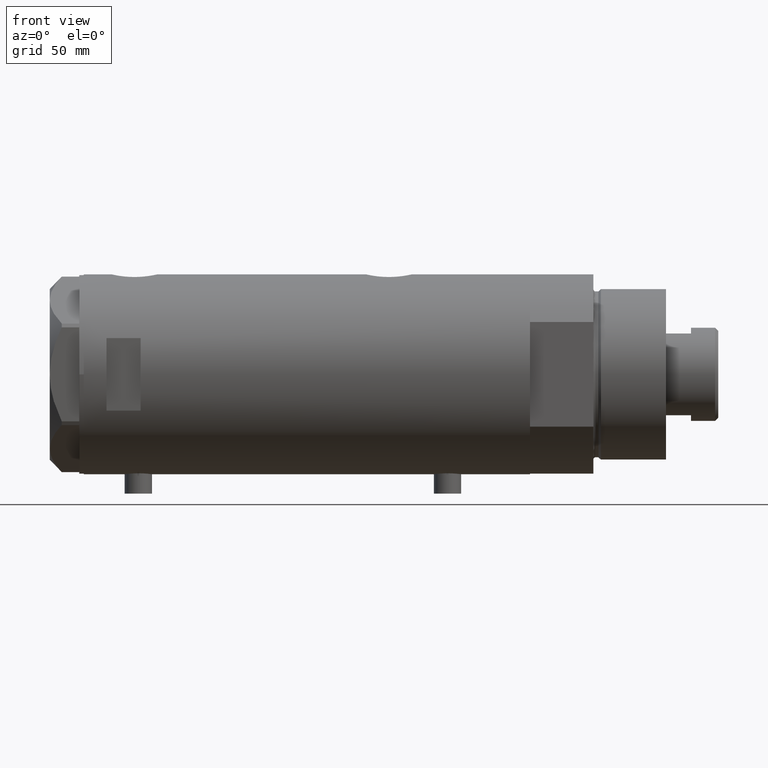
[diagram: clean part render]
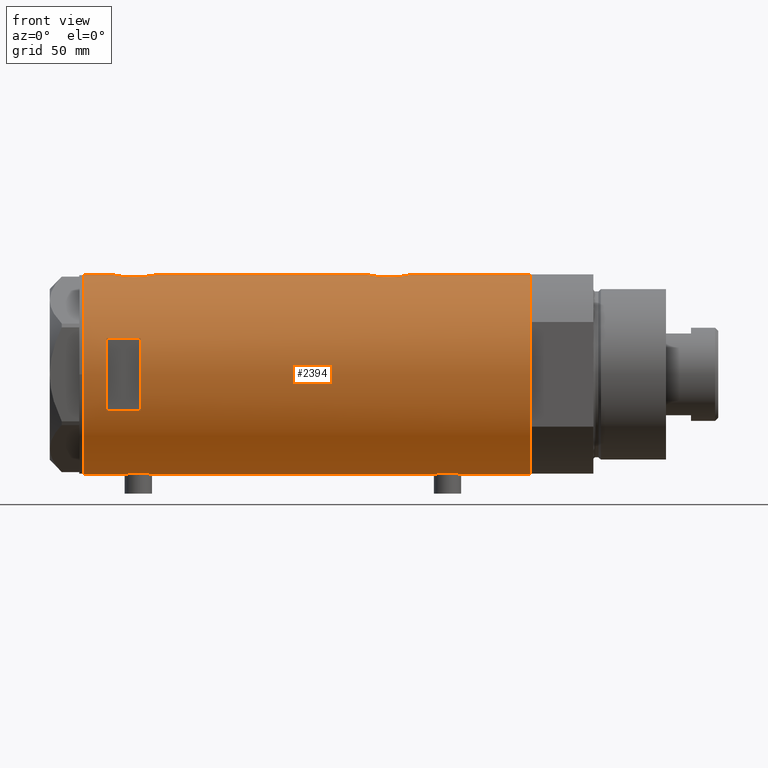
[diagram: same view with one face highlighted and labeled with its STEP entity id]
A machine part, front view. The second image highlights one B-rep face of the part: STEP entity #2394.
In plain terms, the highlighted cylindrical surface (partial cylindrical patch) has radius 44 mm, axis along (-1, -0, 0).
Its self-contained STEP definition (entity closure, byte-faithful):
#41 = CARTESIAN_POINT ( 'NONE',  ( -44.00000000000001421, -0.4080709675389184166, 67.95000000000001705 ) ) ;
#59 = CARTESIAN_POINT ( 'NONE',  ( 43.99999999999998579, -0.6628808997490068800, 65.89999999999999147 ) ) ;
#61 = CARTESIAN_POINT ( 'NONE',  ( -43.99432382855034973, -0.8140126287075730716, 67.98957833183088439 ) ) ;
#81 = CARTESIAN_POINT ( 'NONE',  ( 43.50208939911752992, -6.605519787823896927, 68.38512753745570194 ) ) ;
#138 = VERTEX_POINT ( 'NONE', #924 ) ;
#193 = CARTESIAN_POINT ( 'NONE',  ( 43.92776409818817740, -2.602555515054472579, -26.42196650712919137 ) ) ;
#206 = EDGE_CURVE ( 'NONE', #416, #3964, #4369, .T. ) ;
#213 = CARTESIAN_POINT ( 'NONE',  ( 42.96858625215908489, -9.471543237354845601, -32.87555220689220903 ) ) ;
#222 = CARTESIAN_POINT ( 'NONE',  ( -43.80623767923739820, -4.134861581628535454, -57.19563632739305348 ) ) ;
#224 = CARTESIAN_POINT ( 'NONE',  ( -43.66469451360045895, -5.426465874727613325, 77.32774591864212255 ) ) ;
#231 = ORIENTED_EDGE ( 'NONE', *, *, #492, .F. ) ;
#234 = CARTESIAN_POINT ( 'NONE',  ( 43.98543813568862504, -1.304985013906736047, -26.16346933726120128 ) ) ;
#244 = FACE_BOUND ( 'NONE', #3298, .T. ) ;
#249 = CARTESIAN_POINT ( 'NONE',  ( -43.99417593155910566, -0.8219945290704724350, -55.69061897587039311 ) ) ;
#260 = CARTESIAN_POINT ( 'NONE',  ( 44.00000000000000000, 2.836945177865671897E-15, -46.10000000000000853 ) ) ;
#282 = CARTESIAN_POINT ( 'NONE',  ( -15.96871942267132027, -40.99999999999999289, 73.19999999999998863 ) ) ;
#287 = CARTESIAN_POINT ( 'NONE',  ( -44.00000000000000000, 6.472851849715296073E-16, -55.65000000000000568 ) ) ;
#288 = CARTESIAN_POINT ( 'NONE',  ( -44.00000000000000000, 4.742435893011557518E-16, 80.45000000000001705 ) ) ;
#290 = CARTESIAN_POINT ( 'NONE',  ( 43.07447880731470491, -8.980869115410039072, 80.34709970204103513 ) ) ;
#298 = CARTESIAN_POINT ( 'NONE',  ( 44.00000000000000000, 0.000000000000000000, -98.20000000000000284 ) ) ;
#307 = CARTESIAN_POINT ( 'NONE',  ( -43.55388615229803406, -6.249720082677246324, -62.31732514111985211 ) ) ;
#312 = CARTESIAN_POINT ( 'NONE',  ( -43.58327167020068060, -6.041691433183244975, -60.28672449216637119 ) ) ;
#361 = CARTESIAN_POINT ( 'NONE',  ( 44.00000000000000000, -2.552687571866728611E-15, 65.90000000000001990 ) ) ;
#409 = CARTESIAN_POINT ( 'NONE',  ( 43.46477581456304051, -6.845969322274853219, 68.60355539876688624 ) ) ;
#413 = CARTESIAN_POINT ( 'NONE',  ( -43.97755541524606571, -1.419649999726221967, 68.10988856076365039 ) ) ;
#416 = VERTEX_POINT ( 'NONE', #298 ) ;
#446 = VERTEX_POINT ( 'NONE', #3155 ) ;
#450 = CARTESIAN_POINT ( 'NONE',  ( 44.00000000000000000, 0.000000000000000000, 98.20000000000000284 ) ) ;
#464 = AXIS2_PLACEMENT_3D ( 'NONE', #3192, #3880, #3859 ) ;
#485 = DIRECTION ( 'NONE',  ( 0.000000000000000000, 0.000000000000000000, 1.000000000000000000 ) ) ;
#492 = EDGE_CURVE ( 'NONE', #4175, #611, #1874, .T. ) ;
#498 = CARTESIAN_POINT ( 'NONE',  ( -43.83572624786197025, -3.813948911733268776, 69.23163569779342197 ) ) ;
#522 = CARTESIAN_POINT ( 'NONE',  ( -43.55380622335315621, -6.250277076879243943, 74.60889833390194781 ) ) ;
#537 = CARTESIAN_POINT ( 'NONE',  ( 43.50370990764397305, -6.606474645717125505, -28.56479064715112415 ) ) ;
#560 = CARTESIAN_POINT ( 'NONE',  ( 43.88203303552249679, -3.235230624304758162, -45.56792613063984732 ) ) ;
#569 = CARTESIAN_POINT ( 'NONE',  ( -43.66469451360047316, -5.426465874727620431, -58.77225408135789309 ) ) ;
#570 = CARTESIAN_POINT ( 'NONE',  ( -43.64013512596971367, -5.618144550806293047, 76.96884254373171075 ) ) ;
#573 = CARTESIAN_POINT ( 'NONE',  ( 42.84860178791322483, -9.999866241079296003, 76.23396382694163265 ) ) ;
#582 = CARTESIAN_POINT ( 'NONE',  ( 43.71626298452613923, -5.019105827807318398, -44.77413437979601696 ) ) ;
#589 = CARTESIAN_POINT ( 'NONE',  ( -43.83513771791772484, -3.820747781112554531, -56.93678981703624942 ) ) ;
#591 = CARTESIAN_POINT ( 'NONE',  ( -43.57664920749031978, -6.089110472216501257, 72.77636913130589846 ) ) ;
#593 = CARTESIAN_POINT ( 'NONE',  ( 43.39114022679083860, -7.298186114522533074, 82.74417279492062960 ) ) ;
#602 = CARTESIAN_POINT ( 'NONE',  ( 43.98503203903423042, -1.316644100880400625, -46.03472955295632119 ) ) ;
#611 = VERTEX_POINT ( 'NONE', #282 ) ;
#613 = LINE ( 'NONE', #4471, #1579 ) ;
#638 = CARTESIAN_POINT ( 'NONE',  ( 43.24269204559828950, -8.130405600641543273, 81.73114502806993187 ) ) ;
#650 = CARTESIAN_POINT ( 'NONE',  ( -43.57664920749032689, -6.089110472216507475, -63.32363086869416691 ) ) ;
#657 = CARTESIAN_POINT ( 'NONE',  ( -44.00000000000000711, -0.4134142287044808017, 80.45000000000004547 ) ) ;
#679 = CARTESIAN_POINT ( 'NONE',  ( -44.00000000000000000, 5.388445781992449847E-15, -68.15000000000001990 ) ) ;
#681 = CIRCLE ( 'NONE', #1716, 44.00000000000000000 ) ;
#704 = VERTEX_POINT ( 'NONE', #779 ) ;
#744 = LINE ( 'NONE', #2478, #752 ) ;
#752 = VECTOR ( 'NONE', #3517, 1000.000000000000000 ) ;
#774 = CARTESIAN_POINT ( 'NONE',  ( 43.61181667275830165, -5.838254419127787642, 67.77455890582506015 ) ) ;
#779 = CARTESIAN_POINT ( 'NONE',  ( 15.96871942267132027, -40.99999999999999289, 73.19999999999998863 ) ) ;
#781 = CARTESIAN_POINT ( 'NONE',  ( -43.83572624786197736, -3.813948911733276770, -66.86836430220661498 ) ) ;
#795 = EDGE_CURVE ( 'NONE', #3254, #1124, #2273, .T. ) ;
#813 = LINE ( 'NONE', #1893, #4042 ) ;
#826 = CARTESIAN_POINT ( 'NONE',  ( 15.96871942267132027, -40.99999999999999289, -98.20000000000000284 ) ) ;
#843 = CARTESIAN_POINT ( 'NONE',  ( -43.66524845950890210, -5.422010366683132965, 71.06461956647024181 ) ) ;
#867 = CARTESIAN_POINT ( 'NONE',  ( -43.55981666146650610, -6.208773019004409477, 73.37562000806383367 ) ) ;
#876 = CARTESIAN_POINT ( 'NONE',  ( 43.50208939911752992, -6.605519787823889821, -43.61487246254434069 ) ) ;
#892 = CARTESIAN_POINT ( 'NONE',  ( -43.58327167020068060, -6.041691433183235205, 75.81327550783366576 ) ) ;
#896 = CARTESIAN_POINT ( 'NONE',  ( 44.00000000000000000, 0.000000000000000000, -98.20000000000000284 ) ) ;
#920 = CARTESIAN_POINT ( 'NONE',  ( -43.60904414879379942, -5.852991024272603759, 76.40156316652908686 ) ) ;
#924 = CARTESIAN_POINT ( 'NONE',  ( 44.00000000000000000, -2.552687571866728611E-15, 65.90000000000001990 ) ) ;
#930 = CARTESIAN_POINT ( 'NONE',  ( 43.68175117880464597, -5.289576318274432865, -27.60722456708441896 ) ) ;
#939 = CARTESIAN_POINT ( 'NONE',  ( -43.58358352828439308, -6.039443007521657414, 72.57836901614263070 ) ) ;
#948 = CARTESIAN_POINT ( 'NONE',  ( 43.71528002050703776, -5.005885132985639530, -27.43693693285514001 ) ) ;
#970 = CARTESIAN_POINT ( 'NONE',  ( 42.92195198079053853, -9.681069926205545073, -38.68932500906514349 ) ) ;
#985 = CARTESIAN_POINT ( 'NONE',  ( 43.77763691689010273, -4.427538730370040199, 84.87242712208069406 ) ) ;
#997 = LINE ( 'NONE', #4490, #2301 ) ;
#998 = CARTESIAN_POINT ( 'NONE',  ( -43.59994860325051036, -5.920144153815575017, -63.91406357569761099 ) ) ;
#1000 = CYLINDRICAL_SURFACE ( 'NONE', #3252, 44.00000000000000000 ) ;
#1026 = CARTESIAN_POINT ( 'NONE',  ( 43.13689707656755701, -8.680169016269172033, 70.89163097888800280 ) ) ;
#1087 = CARTESIAN_POINT ( 'NONE',  ( 42.92195198079053142, -9.681069926205539744, 73.31067499093487072 ) ) ;
#1121 = CARTESIAN_POINT ( 'NONE',  ( -43.91347832647110039, -2.763895659397271665, 68.59061350622417308 ) ) ;
#1124 = VERTEX_POINT ( 'NONE', #1967 ) ;
#1173 = ORIENTED_EDGE ( 'NONE', *, *, #3444, .T. ) ;
#1219 = CARTESIAN_POINT ( 'NONE',  ( -43.71916086763248899, -4.968610719017467758, 70.38664001145374982 ) ) ;
#1247 = CARTESIAN_POINT ( 'NONE',  ( 43.13689707656754990, -8.680169016269179139, -41.10836902111201141 ) ) ;
#1272 = CARTESIAN_POINT ( 'NONE',  ( 42.85249883256044257, -9.983208936152879076, -35.43427783458178482 ) ) ;
#1281 = DIRECTION ( 'NONE',  ( 0.000000000000000000, 0.000000000000000000, 1.000000000000000000 ) ) ;
#1287 = CARTESIAN_POINT ( 'NONE',  ( -43.60904414879379232, -5.852991024272610865, -59.69843683347092878 ) ) ;
#1296 = CARTESIAN_POINT ( 'NONE',  ( 42.92612181419236350, -9.662173761604314848, -33.50200210390286770 ) ) ;
#1322 = DIRECTION ( 'NONE',  ( 0.000000000000000000, 0.000000000000000000, 1.000000000000000000 ) ) ;
#1348 = FACE_OUTER_BOUND ( 'NONE', #2778, .T. ) ;
#1374 = CARTESIAN_POINT ( 'NONE',  ( -43.55380622335316332, -6.250277076879251936, -61.49110166609812467 ) ) ;
#1384 = ORIENTED_EDGE ( 'NONE', *, *, #3137, .F. ) ;
#1401 = CARTESIAN_POINT ( 'NONE',  ( -43.80623767923739109, -4.134861581628527460, 78.90436367260696215 ) ) ;
#1407 = B_SPLINE_CURVE_WITH_KNOTS ( 'NONE', 3,
 ( #2058, #1479, #2734, #1880, #2390, #4279, #3922, #2544, #3945, #3272, #781, #2902, #2188, #3805, #3582, #4304, #4146, #998, #3786, #650, #3454, #307, #1374, #3375, #1632, #312, #3457, #1287, #1698, #569, #3397, #3440, #222, #589, #2375, #4152, #3791, #2330, #2677, #4431, #249, #1980, #287 ),
 .UNSPECIFIED., .F., .F.,
 ( 4, 2, 2, 1, 2, 2, 2, 2, 2, 2, 2, 2, 2, 2, 2, 2, 2, 2, 2, 2, 2, 4 ),
 ( 0.01956509074799518341, 0.02078761141254042641, 0.02139887174481304791, 0.02201013207708566941, 0.02262139240935828743, 0.02323265274163090893, 0.02445517340617617622, 0.02567769407072143656, 0.02690021473526670037, 0.02751147506753932881, 0.02812273539981196072, 0.02934525606435726269, 0.03056777672890254385, 0.03117903706117519658, 0.03179029739344783889, 0.03301281805799314434, 0.03423533872253844978, 0.03545785938708374829, 0.03668038005162904680, 0.03729164038390170299, 0.03790290071617435919, 0.03912542138071965769 ),
 .UNSPECIFIED. ) ;
#1429 = CARTESIAN_POINT ( 'NONE',  ( 43.39001814939472013, -7.304817421876465211, 69.06296539328327810 ) ) ;
#1445 = CARTESIAN_POINT ( 'NONE',  ( 42.96573602780768653, -9.487415353952515673, 72.67265455416382736 ) ) ;
#1446 = ORIENTED_EDGE ( 'NONE', *, *, #4082, .F. ) ;
#1469 = CARTESIAN_POINT ( 'NONE',  ( -43.97059312650996787, -1.620278982928820888, 68.16021308614129737 ) ) ;
#1479 = CARTESIAN_POINT ( 'NONE',  ( -43.99999999999999289, -0.4080709675389172508, -68.15000000000001990 ) ) ;
#1530 = CARTESIAN_POINT ( 'NONE',  ( 44.00000000000000000, 2.836945177865671897E-15, -46.10000000000000853 ) ) ;
#1550 = LINE ( 'NONE', #826, #3619 ) ;
#1579 = VECTOR ( 'NONE', #1658, 1000.000000000000000 ) ;
#1590 = DIRECTION ( 'NONE',  ( 1.776356839400250465E-15, 1.000000000000000000, 4.731064025391292434E-15 ) ) ;
#1594 = CARTESIAN_POINT ( 'NONE',  ( -43.60943079847655213, -5.850114217193378430, 71.99078124073398044 ) ) ;
#1602 = CARTESIAN_POINT ( 'NONE',  ( 43.07321175413309788, -8.986876637256999700, -40.53428201988752733 ) ) ;
#1630 = VECTOR ( 'NONE', #3269, 1000.000000000000000 ) ;
#1632 = CARTESIAN_POINT ( 'NONE',  ( -43.57636709704395628, -6.091127289750679630, -60.48500674339015148 ) ) ;
#1633 = VERTEX_POINT ( 'NONE', #3016 ) ;
#1643 = CARTESIAN_POINT ( 'NONE',  ( 43.07447880731469780, -8.980869115410040848, -31.65290029795897553 ) ) ;
#1657 = VECTOR ( 'NONE', #2614, 1000.000000000000000 ) ;
#1658 = DIRECTION ( 'NONE',  ( 0.000000000000000000, 0.000000000000000000, 1.000000000000000000 ) ) ;
#1670 = CARTESIAN_POINT ( 'NONE',  ( 43.24269204559828239, -8.130405600641552155, -30.26885497193005392 ) ) ;
#1689 = CARTESIAN_POINT ( 'NONE',  ( 43.35323102813807594, -7.519449998269473134, -29.49957710715733583 ) ) ;
#1698 = CARTESIAN_POINT ( 'NONE',  ( -43.64013512596970656, -5.618144550806301041, -59.13115745626835462 ) ) ;
#1716 = AXIS2_PLACEMENT_3D ( 'NONE', #3974, #2172, #2950 ) ;
#1728 = CARTESIAN_POINT ( 'NONE',  ( 42.89003040145177437, -9.821289533110931558, 77.86491628329994796 ) ) ;
#1750 = CARTESIAN_POINT ( 'NONE',  ( 42.86369059155248351, -9.935849517229275563, 74.59362589981802216 ) ) ;
#1859 = ORIENTED_EDGE ( 'NONE', *, *, #3284, .F. ) ;
#1874 = LINE ( 'NONE', #3556, #1630 ) ;
#1880 = CARTESIAN_POINT ( 'NONE',  ( -43.97755541524607992, -1.419649999726222633, -67.99011143923635814 ) ) ;
#1893 = CARTESIAN_POINT ( 'NONE',  ( -44.00000000000000000, 5.388445916248353619E-15, -98.20000000000000284 ) ) ;
#1938 = VERTEX_POINT ( 'NONE', #2560 ) ;
#1951 = CARTESIAN_POINT ( 'NONE',  ( 43.39001814939471302, -7.304817421876454553, -42.93703460671677163 ) ) ;
#1967 = CARTESIAN_POINT ( 'NONE',  ( -44.00000000000000000, 4.742435893011557518E-16, 80.45000000000001705 ) ) ;
#1972 = CARTESIAN_POINT ( 'NONE',  ( 43.94187300917954531, -2.283844398366604356, -45.84126046817048916 ) ) ;
#1980 = CARTESIAN_POINT ( 'NONE',  ( -44.00000000000000000, -0.4134142287044832997, -55.65000000000000568 ) ) ;
#1982 = CARTESIAN_POINT ( 'NONE',  ( 42.84850870634926423, -10.00026508230968325, 75.24416084878259880 ) ) ;
#2001 = CARTESIAN_POINT ( 'NONE',  ( -43.99417593155912698, -0.8219945290704717689, 80.40938102412962962 ) ) ;
#2003 = CARTESIAN_POINT ( 'NONE',  ( 43.27890888111421930, -7.936045294464972422, 81.99318436657195264 ) ) ;
#2012 = CARTESIAN_POINT ( 'NONE',  ( 43.57790701154753776, -6.104591320335877036, -28.15258699105065432 ) ) ;
#2027 = CARTESIAN_POINT ( 'NONE',  ( 43.88549648731375896, -3.229309612650779204, 85.38664302486387214 ) ) ;
#2037 = CARTESIAN_POINT ( 'NONE',  ( 43.92391465552167773, -2.605621203777293893, -45.76018015101779923 ) ) ;
#2046 = CARTESIAN_POINT ( 'NONE',  ( -43.88932649443422918, -3.137583818903199262, 79.62099038059545819 ) ) ;
#2048 = CARTESIAN_POINT ( 'NONE',  ( 42.96858625215907779, -9.471543237354833167, 79.12444779310783360 ) ) ;
#2058 = CARTESIAN_POINT ( 'NONE',  ( -44.00000000000000000, 5.388445781992449847E-15, -68.15000000000001990 ) ) ;
#2069 = EDGE_CURVE ( 'NONE', #3812, #138, #4257, .T. ) ;
#2086 = CARTESIAN_POINT ( 'NONE',  ( -43.71863308610073773, -4.973248429199020215, 78.00737790121172566 ) ) ;
#2167 = CARTESIAN_POINT ( 'NONE',  ( 15.96871942267132027, -40.99999999999999289, 88.20000000000000284 ) ) ;
#2172 = DIRECTION ( 'NONE',  ( -0.000000000000000000, 0.000000000000000000, -1.000000000000000000 ) ) ;
#2178 = CARTESIAN_POINT ( 'NONE',  ( 43.24192112218943151, -8.134529092006102857, 70.07447770135895837 ) ) ;
#2188 = CARTESIAN_POINT ( 'NONE',  ( -43.74870614644073896, -4.704745394280569037, -66.03446487340026749 ) ) ;
#2205 = EDGE_CURVE ( 'NONE', #611, #704, #2499, .T. ) ;
#2223 = VERTEX_POINT ( 'NONE', #450 ) ;
#2262 = ORIENTED_EDGE ( 'NONE', *, *, #795, .F. ) ;
#2270 = CARTESIAN_POINT ( 'NONE',  ( -44.00000000000000000, 5.388445916248353619E-15, -98.20000000000000284 ) ) ;
#2273 = B_SPLINE_CURVE_WITH_KNOTS ( 'NONE', 3,
 ( #3199, #41, #61, #413, #1469, #3553, #4271, #1121, #2513, #3915, #498, #4364, #3358, #1219, #843, #4006, #1594, #4341, #939, #591, #867, #3661, #522, #2624, #2679, #892, #2652, #920, #570, #224, #2086, #4545, #1401, #2716, #2046, #3752, #4195, #2740, #2440, #3836, #2001, #657, #288 ),
 .UNSPECIFIED., .F., .F.,
 ( 4, 2, 2, 1, 2, 2, 2, 2, 2, 2, 2, 2, 2, 2, 2, 2, 2, 2, 2, 2, 2, 4 ),
 ( 0.01956509074799517994, 0.02078761141254040559, 0.02139887174481301668, 0.02201013207708563124, 0.02262139240935824580, 0.02323265274163085689, 0.02445517340617610336, 0.02567769407072134982, 0.02690021473526659629, 0.02751147506753922126, 0.02812273539981184622, 0.02934525606435713085, 0.03056777672890241548, 0.03117903706117506127, 0.03179029739344770011, 0.03301281805799302638, 0.03423533872253835264, 0.03545785938708367196, 0.03668038005162899129, 0.03729164038390166136, 0.03790290071617432449, 0.03912542138071965075 ),
 .UNSPECIFIED. ) ;
#2274 = CARTESIAN_POINT ( 'NONE',  ( 43.61181667275832297, -5.838254419127783201, -44.22544109417496117 ) ) ;
#2288 = AXIS2_PLACEMENT_3D ( 'NONE', #3593, #4316, #1590 ) ;
#2301 = VECTOR ( 'NONE', #1322, 1000.000000000000000 ) ;
#2302 = CARTESIAN_POINT ( 'NONE',  ( 43.13833976206234411, -8.672905216733560962, -31.07967078979186937 ) ) ;
#2314 = CARTESIAN_POINT ( 'NONE',  ( 42.86761451923558042, -9.918101748202658996, 77.21867523549629198 ) ) ;
#2317 = EDGE_CURVE ( 'NONE', #1124, #1633, #813, .T. ) ;
#2322 = CARTESIAN_POINT ( 'NONE',  ( 43.46477581456304051, -6.845969322274839008, -43.39644460123313507 ) ) ;
#2330 = CARTESIAN_POINT ( 'NONE',  ( -43.95404166778756405, -2.020054257598463021, -55.98191054514349929 ) ) ;
#2338 = CARTESIAN_POINT ( 'NONE',  ( 43.24192112218942441, -8.134529092006106410, -41.92552229864112689 ) ) ;
#2375 = CARTESIAN_POINT ( 'NONE',  ( -43.88932649443424339, -3.137583818903205479, -56.47900961940456455 ) ) ;
#2378 = CARTESIAN_POINT ( 'NONE',  ( 43.71528002050701645, -5.005885132985640418, 84.56306306714488130 ) ) ;
#2390 = CARTESIAN_POINT ( 'NONE',  ( -43.97059312650997498, -1.620278982928825551, -67.93978691385872537 ) ) ;
#2394 = ADVANCED_FACE ( 'NONE', ( #1348, #244 ), #1000, .T. ) ;
#2400 = CARTESIAN_POINT ( 'NONE',  ( 43.13833976206234411, -8.672905216733555633, 80.92032921020813774 ) ) ;
#2440 = CARTESIAN_POINT ( 'NONE',  ( -43.97029046111977379, -1.628482392291957126, 80.23758619792059221 ) ) ;
#2441 = CARTESIAN_POINT ( 'NONE',  ( 43.88203303552251100, -3.235230624304767932, 66.43207386936018111 ) ) ;
#2475 = EDGE_CURVE ( 'NONE', #446, #138, #744, .T. ) ;
#2478 = CARTESIAN_POINT ( 'NONE',  ( 44.00000000000000000, 0.000000000000000000, -98.20000000000000284 ) ) ;
#2482 = CARTESIAN_POINT ( 'NONE',  ( 43.71626298452613923, -5.019105827807321951, 67.22586562020403278 ) ) ;
#2494 = CARTESIAN_POINT ( 'NONE',  ( -44.00000000000000000, 5.388445781982983516E-15, 67.95000000000001705 ) ) ;
#2499 = CIRCLE ( 'NONE', #2288, 44.00000000000000000 ) ;
#2513 = CARTESIAN_POINT ( 'NONE',  ( -43.88927795770375440, -3.124736516396337649, 68.78332595076192035 ) ) ;
#2544 = CARTESIAN_POINT ( 'NONE',  ( -43.91347832647109328, -2.763895659397266780, -67.50938649377584966 ) ) ;
#2560 = CARTESIAN_POINT ( 'NONE',  ( -44.00000000000000000, 6.472851849715296073E-16, -55.65000000000000568 ) ) ;
#2614 = DIRECTION ( 'NONE',  ( 0.000000000000000000, 0.000000000000000000, 1.000000000000000000 ) ) ;
#2624 = CARTESIAN_POINT ( 'NONE',  ( -43.55964145621772587, -6.209995197331129368, 75.01523613383574229 ) ) ;
#2652 = CARTESIAN_POINT ( 'NONE',  ( -43.59959777593760322, -5.922725608094071781, 76.20649311217414379 ) ) ;
#2664 = CARTESIAN_POINT ( 'NONE',  ( 43.77763691689010983, -4.427538730370036646, -27.12757287791930239 ) ) ;
#2677 = CARTESIAN_POINT ( 'NONE',  ( -43.97029046111978090, -1.628482392291950687, -55.86241380207945184 ) ) ;
#2679 = CARTESIAN_POINT ( 'NONE',  ( -43.57636709704394917, -6.091127289750676077, 75.61499325660989257 ) ) ;
#2703 = CARTESIAN_POINT ( 'NONE',  ( 42.84850870634925002, -10.00026508230968680, -36.75583915121742251 ) ) ;
#2716 = CARTESIAN_POINT ( 'NONE',  ( -43.83513771791772484, -3.820747781112549202, 79.16321018296372358 ) ) ;
#2718 = CARTESIAN_POINT ( 'NONE',  ( 44.00000000000000000, -0.6537011444665535853, 85.90000000000001990 ) ) ;
#2725 = EDGE_CURVE ( 'NONE', #3097, #4175, #681, .T. ) ;
#2734 = CARTESIAN_POINT ( 'NONE',  ( -43.99432382855034973, -0.8140126287075748479, -68.11042166816913834 ) ) ;
#2740 = CARTESIAN_POINT ( 'NONE',  ( -43.95404166778755695, -2.020054257598466574, 80.11808945485654476 ) ) ;
#2746 = CARTESIAN_POINT ( 'NONE',  ( -15.96871942267132027, -40.99999999999999289, 88.20000000000000284 ) ) ;
#2778 = EDGE_LOOP ( 'NONE', ( #1446, #1173, #3005, #3588, #4386, #4097, #2900, #3573, #4259, #2262, #3834, #1859 ) ) ;
#2810 = ORIENTED_EDGE ( 'NONE', *, *, #2725, .F. ) ;
#2813 = CARTESIAN_POINT ( 'NONE',  ( 43.85817087158037708, -3.542878095418179107, 66.54296338884478246 ) ) ;
#2818 = EDGE_CURVE ( 'NONE', #1633, #2223, #3403, .T. ) ;
#2836 = CARTESIAN_POINT ( 'NONE',  ( 43.35257225115238100, -7.523216248090028202, 69.30394696407655886 ) ) ;
#2900 = ORIENTED_EDGE ( 'NONE', *, *, #3763, .T. ) ;
#2902 = CARTESIAN_POINT ( 'NONE',  ( -43.80686114384899810, -4.128296917151115686, -66.61015855128312069 ) ) ;
#2950 = DIRECTION ( 'NONE',  ( 1.000000000000000000, 0.000000000000000000, 0.000000000000000000 ) ) ;
#2997 = CARTESIAN_POINT ( 'NONE',  ( 43.27861175590268772, -7.937636171351963199, -42.19102867990999783 ) ) ;
#3005 = ORIENTED_EDGE ( 'NONE', *, *, #206, .T. ) ;
#3016 = CARTESIAN_POINT ( 'NONE',  ( -44.00000000000000000, 5.388445916248353619E-15, 98.20000000000000284 ) ) ;
#3020 = CARTESIAN_POINT ( 'NONE',  ( -44.00000000000000000, 5.388445916248353619E-15, -98.20000000000000284 ) ) ;
#3043 = LINE ( 'NONE', #3020, #1657 ) ;
#3078 = CARTESIAN_POINT ( 'NONE',  ( 43.92776409818818451, -2.602555515054472135, 85.57803349287081573 ) ) ;
#3080 = DIRECTION ( 'NONE',  ( 0.000000000000000000, 0.000000000000000000, 1.000000000000000000 ) ) ;
#3086 = CARTESIAN_POINT ( 'NONE',  ( 0.000000000000000000, 0.000000000000000000, 98.20000000000000284 ) ) ;
#3097 = VERTEX_POINT ( 'NONE', #2167 ) ;
#3101 = CARTESIAN_POINT ( 'NONE',  ( 42.92612181419236350, -9.662173761604313071, 78.49799789609716072 ) ) ;
#3131 = CARTESIAN_POINT ( 'NONE',  ( 43.68175117880464597, -5.289576318274436417, 84.39277543291558459 ) ) ;
#3137 = EDGE_CURVE ( 'NONE', #704, #3097, #1550, .T. ) ;
#3155 = CARTESIAN_POINT ( 'NONE',  ( 44.00000000000000000, -3.917142467416489149E-21, -26.10000000000000497 ) ) ;
#3172 = CARTESIAN_POINT ( 'NONE',  ( 43.94187300917955241, -2.283844398366610129, 66.15873953182952505 ) ) ;
#3191 = VERTEX_POINT ( 'NONE', #2270 ) ;
#3192 = CARTESIAN_POINT ( 'NONE',  ( 0.000000000000000000, 0.000000000000000000, -98.20000000000000284 ) ) ;
#3193 = CARTESIAN_POINT ( 'NONE',  ( 43.98503203903423753, -1.316644100880406176, 65.96527044704370724 ) ) ;
#3199 = CARTESIAN_POINT ( 'NONE',  ( -44.00000000000000000, 5.388445781982983516E-15, 67.95000000000001705 ) ) ;
#3252 = AXIS2_PLACEMENT_3D ( 'NONE', #3769, #1281, #3727 ) ;
#3254 = VERTEX_POINT ( 'NONE', #2494 ) ;
#3269 = DIRECTION ( 'NONE',  ( -0.000000000000000000, -0.000000000000000000, -1.000000000000000000 ) ) ;
#3272 = CARTESIAN_POINT ( 'NONE',  ( -43.87623998657198143, -3.302247739865023846, -67.21034343519744425 ) ) ;
#3284 = EDGE_CURVE ( 'NONE', #3458, #1938, #1407, .T. ) ;
#3298 = EDGE_LOOP ( 'NONE', ( #3315, #231, #2810, #1384 ) ) ;
#3315 = ORIENTED_EDGE ( 'NONE', *, *, #2205, .F. ) ;
#3318 = B_SPLINE_CURVE_WITH_KNOTS ( 'NONE', 3,
 ( #4017, #3722, #234, #193, #3385, #4038, #2664, #948, #930, #2012, #537, #4087, #1689, #4111, #1670, #2302, #1643, #4441, #213, #1296, #4463, #4418, #1272, #3740, #2703, #4067, #970, #3409, #1602, #1247, #2338, #2997, #3675, #1951, #2322, #876, #3760, #2274, #582, #3702, #3368, #560, #2037, #1972, #602, #3351, #260 ),
 .UNSPECIFIED., .F., .F.,
 ( 4, 2, 2, 2, 2, 2, 2, 2, 2, 2, 1, 2, 2, 2, 2, 2, 2, 2, 2, 2, 2, 2, 2, 4 ),
 ( 0.03136730421198216656, 0.03332724096696806915, 0.03528717772195397173, 0.03626714609944691609, 0.03724711447693986738, 0.03920705123192576302, 0.04018701960941871432, 0.04116698798691166561, 0.04312692474189756126, 0.04410689311939051255, 0.04508686149688346384, 0.04606682987437641513, 0.04704679825186936643, 0.04900673500685526207, 0.05096667176184117160, 0.05292660851682706724, 0.05390657689432003241, 0.05488654527181299758, 0.05586651364930595581, 0.05684648202679891404, 0.05880641878178481663, 0.05978638715927777486, 0.06076635553677073309, 0.06272629229175663568 ),
 .UNSPECIFIED. ) ;
#3344 = EDGE_CURVE ( 'NONE', #1938, #3254, #613, .T. ) ;
#3351 = CARTESIAN_POINT ( 'NONE',  ( 44.00000000000000000, -0.6628808997490056587, -46.10000000000000853 ) ) ;
#3358 = CARTESIAN_POINT ( 'NONE',  ( -43.74870614644074607, -4.704745394280565485, 70.06553512659976946 ) ) ;
#3368 = CARTESIAN_POINT ( 'NONE',  ( 43.85817087158035577, -3.542878095418167117, -45.45703661115526018 ) ) ;
#3375 = CARTESIAN_POINT ( 'NONE',  ( -43.55964145621771877, -6.209995197331135586, -61.08476386616428755 ) ) ;
#3385 = CARTESIAN_POINT ( 'NONE',  ( 43.88549648731375896, -3.229309612650773431, -26.61335697513613852 ) ) ;
#3397 = CARTESIAN_POINT ( 'NONE',  ( -43.71863308610075904, -4.973248429199021992, -58.09262209878829708 ) ) ;
#3402 = CARTESIAN_POINT ( 'NONE',  ( 43.35323102813806173, -7.519449998269472246, 82.50042289284266417 ) ) ;
#3403 = CIRCLE ( 'NONE', #4357, 44.00000000000000000 ) ;
#3409 = CARTESIAN_POINT ( 'NONE',  ( 42.96573602780769363, -9.487415353952522779, -39.32734544583617264 ) ) ;
#3423 = CARTESIAN_POINT ( 'NONE',  ( 43.98543813568861793, -1.304985013906736713, 85.83653066273880938 ) ) ;
#3440 = CARTESIAN_POINT ( 'NONE',  ( -43.74813644611201369, -4.709999724143506761, -57.77155956056775210 ) ) ;
#3442 = CARTESIAN_POINT ( 'NONE',  ( 44.00000000000000000, -3.917104602093038540E-21, 85.90000000000000568 ) ) ;
#3444 = EDGE_CURVE ( 'NONE', #3191, #416, #4430, .T. ) ;
#3454 = CARTESIAN_POINT ( 'NONE',  ( -43.55981666146652742, -6.208773019004414806, -62.72437999193618197 ) ) ;
#3457 = CARTESIAN_POINT ( 'NONE',  ( -43.59959777593761032, -5.922725608094079774, -59.89350688782584342 ) ) ;
#3458 = VERTEX_POINT ( 'NONE', #679 ) ;
#3460 = CARTESIAN_POINT ( 'NONE',  ( 42.99316244204496940, -9.359736474891654723, 79.43603020032176687 ) ) ;
#3503 = CARTESIAN_POINT ( 'NONE',  ( 43.07321175413309078, -8.986876637256992595, 71.46571798011245846 ) ) ;
#3517 = DIRECTION ( 'NONE',  ( 0.000000000000000000, 0.000000000000000000, 1.000000000000000000 ) ) ;
#3553 = CARTESIAN_POINT ( 'NONE',  ( -43.95442538259509746, -2.011679190499023662, 68.27906453490220429 ) ) ;
#3556 = CARTESIAN_POINT ( 'NONE',  ( -15.96871942267132027, -40.99999999999999289, -98.20000000000000284 ) ) ;
#3572 = CARTESIAN_POINT ( 'NONE',  ( 43.92391465552169194, -2.605621203777309436, 66.23981984898223629 ) ) ;
#3573 = ORIENTED_EDGE ( 'NONE', *, *, #2818, .F. ) ;
#3582 = CARTESIAN_POINT ( 'NONE',  ( -43.66524845950888789, -5.422010366683141847, -65.03538043352979514 ) ) ;
#3588 = ORIENTED_EDGE ( 'NONE', *, *, #4083, .F. ) ;
#3593 = CARTESIAN_POINT ( 'NONE',  ( 0.000000000000000000, 0.000000000000000000, 73.20000000000018758 ) ) ;
#3619 = VECTOR ( 'NONE', #485, 1000.000000000000000 ) ;
#3661 = CARTESIAN_POINT ( 'NONE',  ( -43.55388615229803406, -6.249720082677240107, 73.78267485888017063 ) ) ;
#3675 = CARTESIAN_POINT ( 'NONE',  ( 43.35257225115238100, -7.523216248090020208, -42.69605303592345535 ) ) ;
#3702 = CARTESIAN_POINT ( 'NONE',  ( 43.77905627191557869, -4.445085099228542447, -45.08140834316034073 ) ) ;
#3713 = CARTESIAN_POINT ( 'NONE',  ( 42.85249883256044967, -9.983208936152871971, 76.56572216541823650 ) ) ;
#3722 = CARTESIAN_POINT ( 'NONE',  ( 44.00000000000000000, -0.6537011444665530302, -26.10000000000000142 ) ) ;
#3727 = DIRECTION ( 'NONE',  ( 1.000000000000000000, 0.000000000000000000, 0.000000000000000000 ) ) ;
#3740 = CARTESIAN_POINT ( 'NONE',  ( 42.84860178791321772, -9.999866241079299556, -35.76603617305837446 ) ) ;
#3752 = CARTESIAN_POINT ( 'NONE',  ( -43.91398925748691084, -2.775454910411443876, 79.81470775681063401 ) ) ;
#3760 = CARTESIAN_POINT ( 'NONE',  ( 43.57553740812845433, -6.102230194686617537, -44.02899655988669281 ) ) ;
#3763 = EDGE_CURVE ( 'NONE', #3812, #2223, #997, .T. ) ;
#3769 = CARTESIAN_POINT ( 'NONE',  ( 0.000000000000000000, 0.000000000000000000, -98.20000000000000284 ) ) ;
#3774 = CARTESIAN_POINT ( 'NONE',  ( 43.57790701154752355, -6.104591320335877036, 83.84741300894935989 ) ) ;
#3786 = CARTESIAN_POINT ( 'NONE',  ( -43.58358352828438598, -6.039443007521659190, -63.52163098385739204 ) ) ;
#3791 = CARTESIAN_POINT ( 'NONE',  ( -43.94477385411918391, -2.211843467998025226, -56.05092770077139619 ) ) ;
#3794 = CARTESIAN_POINT ( 'NONE',  ( 43.50370990764397305, -6.606474645717129945, 83.43520935284888651 ) ) ;
#3805 = CARTESIAN_POINT ( 'NONE',  ( -43.71916086763248899, -4.968610719017474864, -65.71335998854627292 ) ) ;
#3812 = VERTEX_POINT ( 'NONE', #4143 ) ;
#3834 = ORIENTED_EDGE ( 'NONE', *, *, #3344, .F. ) ;
#3836 = CARTESIAN_POINT ( 'NONE',  ( -43.97729452866927602, -1.427712738744854715, 80.28822907443425549 ) ) ;
#3859 = DIRECTION ( 'NONE',  ( 1.000000000000000000, 0.000000000000000000, 0.000000000000000000 ) ) ;
#3880 = DIRECTION ( 'NONE',  ( 0.000000000000000000, 0.000000000000000000, 1.000000000000000000 ) ) ;
#3881 = CARTESIAN_POINT ( 'NONE',  ( 43.77905627191560001, -4.445085099228551329, 66.91859165683969479 ) ) ;
#3915 = CARTESIAN_POINT ( 'NONE',  ( -43.87623998657198143, -3.302247739865014964, 68.88965656480259270 ) ) ;
#3922 = CARTESIAN_POINT ( 'NONE',  ( -43.93596008603759628, -2.395372424984031579, -67.68349180530614717 ) ) ;
#3945 = CARTESIAN_POINT ( 'NONE',  ( -43.88927795770375440, -3.124736516396334096, -67.31667404923810238 ) ) ;
#3964 = VERTEX_POINT ( 'NONE', #1530 ) ;
#3974 = CARTESIAN_POINT ( 'NONE',  ( 0.000000000000000000, 0.000000000000000000, 88.20000000000000284 ) ) ;
#4006 = CARTESIAN_POINT ( 'NONE',  ( -43.64064219598290606, -5.614224114468902904, 71.42314510380529669 ) ) ;
#4017 = CARTESIAN_POINT ( 'NONE',  ( 44.00000000000000000, -3.917142467416489149E-21, -26.10000000000000497 ) ) ;
#4038 = CARTESIAN_POINT ( 'NONE',  ( 43.80655905412561424, -4.132395729537631901, -26.98794673806236943 ) ) ;
#4042 = VECTOR ( 'NONE', #4148, 1000.000000000000000 ) ;
#4067 = CARTESIAN_POINT ( 'NONE',  ( 42.86369059155246930, -9.935849517229275563, -37.40637410018199205 ) ) ;
#4082 = EDGE_CURVE ( 'NONE', #3191, #3458, #3043, .T. ) ;
#4083 = EDGE_CURVE ( 'NONE', #446, #3964, #3318, .T. ) ;
#4087 = CARTESIAN_POINT ( 'NONE',  ( 43.39114022679083860, -7.298186114522533963, -29.25582720507938816 ) ) ;
#4097 = ORIENTED_EDGE ( 'NONE', *, *, #2069, .F. ) ;
#4111 = CARTESIAN_POINT ( 'NONE',  ( 43.27890888111421219, -7.936045294464970645, -30.00681563342805092 ) ) ;
#4126 = CARTESIAN_POINT ( 'NONE',  ( 43.80655905412562134, -4.132395729537633677, 85.01205326193762346 ) ) ;
#4143 = CARTESIAN_POINT ( 'NONE',  ( 44.00000000000000000, -3.917104602093038540E-21, 85.90000000000000568 ) ) ;
#4146 = CARTESIAN_POINT ( 'NONE',  ( -43.60943079847653792, -5.850114217193380206, -64.10921875926608493 ) ) ;
#4148 = DIRECTION ( 'NONE',  ( 0.000000000000000000, 0.000000000000000000, 1.000000000000000000 ) ) ;
#4152 = CARTESIAN_POINT ( 'NONE',  ( -43.91398925748693216, -2.775454910411439879, -56.28529224318937452 ) ) ;
#4174 = CARTESIAN_POINT ( 'NONE',  ( 43.57553740812844723, -6.102230194686623754, 67.97100344011332140 ) ) ;
#4175 = VERTEX_POINT ( 'NONE', #2746 ) ;
#4195 = CARTESIAN_POINT ( 'NONE',  ( -43.94477385411916970, -2.211843467998029666, 80.04907229922866918 ) ) ;
#4243 = CARTESIAN_POINT ( 'NONE',  ( 43.27861175590267351, -7.937636171351968528, 69.80897132009005190 ) ) ;
#4257 = B_SPLINE_CURVE_WITH_KNOTS ( 'NONE', 3,
 ( #3442, #2718, #3423, #3078, #2027, #4126, #985, #2378, #3131, #3774, #3794, #593, #3402, #2003, #638, #2400, #290, #3460, #2048, #3101, #1728, #2314, #3713, #573, #1982, #1750, #1087, #1445, #3503, #1026, #2178, #4243, #2836, #1429, #409, #81, #4174, #774, #2482, #3881, #2813, #2441, #3572, #3172, #3193, #59, #361 ),
 .UNSPECIFIED., .F., .F.,
 ( 4, 2, 2, 2, 2, 2, 2, 2, 2, 2, 1, 2, 2, 2, 2, 2, 2, 2, 2, 2, 2, 2, 2, 4 ),
 ( 0.03136730421198213881, 0.03332724096696806915, 0.03528717772195399949, 0.03626714609944696466, 0.03724711447693992289, 0.03920705123192585323, 0.04018701960941880452, 0.04116698798691175581, 0.04312692474189768616, 0.04410689311939065826, 0.04508686149688362343, 0.04606682987437659554, 0.04704679825186956071, 0.04900673500685545636, 0.05096667176184135201, 0.05292660851682724765, 0.05390657689432017119, 0.05488654527181310167, 0.05586651364930603214, 0.05684648202679896262, 0.05880641878178481663, 0.05978638715927775404, 0.06076635553677069146, 0.06272629229175656629 ),
 .UNSPECIFIED. ) ;
#4259 = ORIENTED_EDGE ( 'NONE', *, *, #2317, .F. ) ;
#4265 = VECTOR ( 'NONE', #3080, 1000.000000000000000 ) ;
#4271 = CARTESIAN_POINT ( 'NONE',  ( -43.93596008603760339, -2.395372424984027582, 68.41650819469388978 ) ) ;
#4279 = CARTESIAN_POINT ( 'NONE',  ( -43.95442538259509746, -2.011679190499027658, -67.82093546509783266 ) ) ;
#4304 = CARTESIAN_POINT ( 'NONE',  ( -43.64064219598292027, -5.614224114468902904, -64.67685489619476868 ) ) ;
#4316 = DIRECTION ( 'NONE',  ( -0.000000000000000000, -4.625929269271481378E-15, 1.000000000000000000 ) ) ;
#4341 = CARTESIAN_POINT ( 'NONE',  ( -43.59994860325051036, -5.920144153815573240, 72.18593642430241175 ) ) ;
#4357 = AXIS2_PLACEMENT_3D ( 'NONE', #3086, #4402, #4465 ) ;
#4364 = CARTESIAN_POINT ( 'NONE',  ( -43.80686114384900520, -4.128296917151112133, 69.48984144871690205 ) ) ;
#4369 = LINE ( 'NONE', #896, #4265 ) ;
#4386 = ORIENTED_EDGE ( 'NONE', *, *, #2475, .T. ) ;
#4402 = DIRECTION ( 'NONE',  ( 0.000000000000000000, 0.000000000000000000, 1.000000000000000000 ) ) ;
#4418 = CARTESIAN_POINT ( 'NONE',  ( 42.86761451923558042, -9.918101748202664325, -34.78132476450376487 ) ) ;
#4430 = CIRCLE ( 'NONE', #464, 44.00000000000000000 ) ;
#4431 = CARTESIAN_POINT ( 'NONE',  ( -43.97729452866929023, -1.427712738744857601, -55.81177092556577435 ) ) ;
#4441 = CARTESIAN_POINT ( 'NONE',  ( 42.99316244204496229, -9.359736474891656499, -32.56396979967825445 ) ) ;
#4463 = CARTESIAN_POINT ( 'NONE',  ( 42.89002978762405149, -9.821289861518543773, -34.13508362278915342 ) ) ;
#4465 = DIRECTION ( 'NONE',  ( 1.000000000000000000, 0.000000000000000000, 0.000000000000000000 ) ) ;
#4471 = CARTESIAN_POINT ( 'NONE',  ( -44.00000000000000000, 5.388445916248353619E-15, -98.20000000000000284 ) ) ;
#4490 = CARTESIAN_POINT ( 'NONE',  ( 44.00000000000000000, 0.000000000000000000, -98.20000000000000284 ) ) ;
#4545 = CARTESIAN_POINT ( 'NONE',  ( -43.74813644611199948, -4.709999724143497879, 78.32844043943227064 ) ) ;